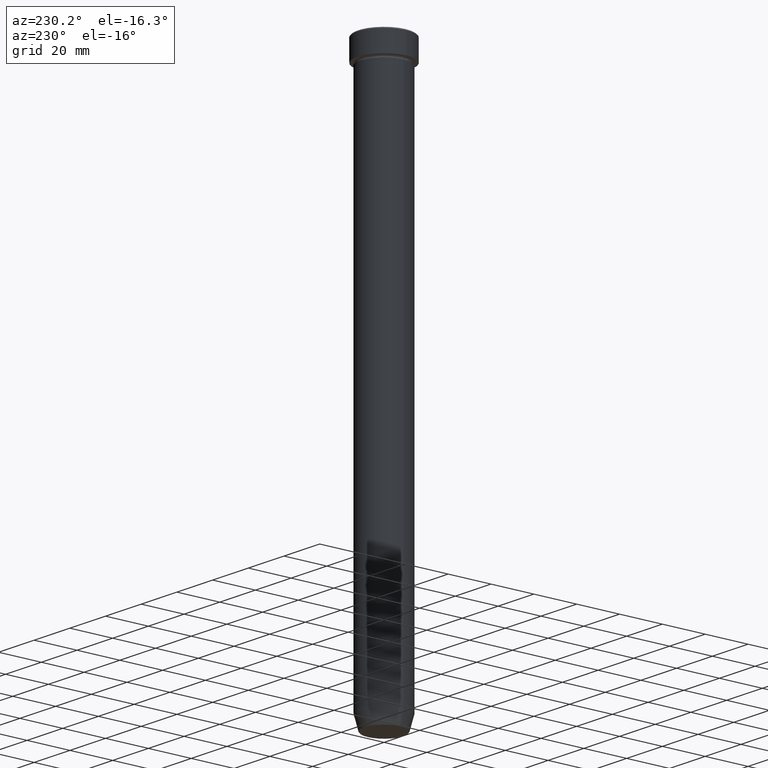
[diagram: clean part render]
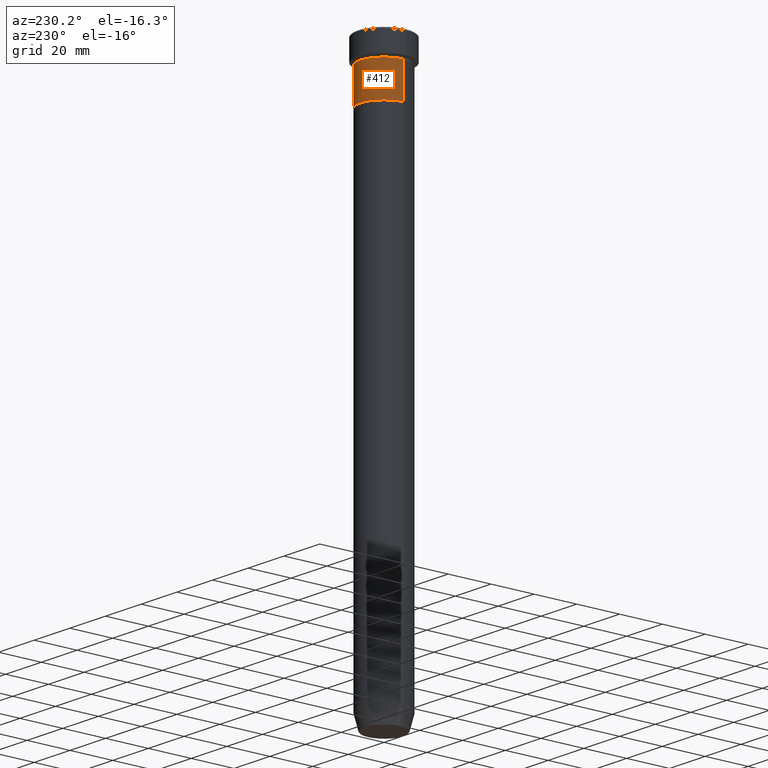
[diagram: same view with one face highlighted and labeled with its STEP entity id]
A machine part, auxiliary view. The second image highlights one B-rep face of the part: STEP entity #412.
In plain terms, the highlighted cylindrical surface (edge-blend (fillet) strip) has radius 11 mm, axis along (-0, -0, 1).
Its self-contained STEP definition (entity closure, byte-faithful):
#21 = CARTESIAN_POINT ( 'NONE',  ( 0.000000000000000000, 0.000000000000000000, 0.000000000000000000 ) ) ;
#22 = VERTEX_POINT ( 'NONE', #111 ) ;
#32 = LINE ( 'NONE', #86, #450 ) ;
#62 = DIRECTION ( 'NONE',  ( -0.000000000000000000, -0.000000000000000000, 1.000000000000000000 ) ) ;
#72 = DIRECTION ( 'NONE',  ( 1.000000000000000000, 0.000000000000000000, 0.000000000000000000 ) ) ;
#83 = CARTESIAN_POINT ( 'NONE',  ( -11.00000000000000000, 1.347111479062088405E-15, -11.00000000000000000 ) ) ;
#86 = CARTESIAN_POINT ( 'NONE',  ( -11.00000000000000000, 1.347111479062088405E-15, 0.000000000000000000 ) ) ;
#111 = CARTESIAN_POINT ( 'NONE',  ( 11.00000000000000000, 0.000000000000000000, -27.00000000000000000 ) ) ;
#154 = VERTEX_POINT ( 'NONE', #389 ) ;
#157 = CIRCLE ( 'NONE', #395, 11.00000000000000000 ) ;
#160 = EDGE_CURVE ( 'NONE', #22, #382, #216, .T. ) ;
#195 = EDGE_CURVE ( 'NONE', #382, #275, #32, .T. ) ;
#203 = DIRECTION ( 'NONE',  ( 1.000000000000000000, 0.000000000000000000, 0.000000000000000000 ) ) ;
#216 = CIRCLE ( 'NONE', #558, 11.00000000000000000 ) ;
#217 = DIRECTION ( 'NONE',  ( -0.000000000000000000, -0.000000000000000000, 1.000000000000000000 ) ) ;
#222 = EDGE_CURVE ( 'NONE', #22, #154, #442, .T. ) ;
#265 = DIRECTION ( 'NONE',  ( -0.000000000000000000, -0.000000000000000000, 1.000000000000000000 ) ) ;
#275 = VERTEX_POINT ( 'NONE', #83 ) ;
#297 = FACE_OUTER_BOUND ( 'NONE', #448, .T. ) ;
#382 = VERTEX_POINT ( 'NONE', #496 ) ;
#389 = CARTESIAN_POINT ( 'NONE',  ( 11.00000000000000000, 0.000000000000000000, -11.00000000000000000 ) ) ;
#395 = AXIS2_PLACEMENT_3D ( 'NONE', #580, #482, #72 ) ;
#412 = ADVANCED_FACE ( 'NONE', ( #297 ), #514, .T. ) ;
#419 = VECTOR ( 'NONE', #265, 1000.000000000000000 ) ;
#426 = EDGE_CURVE ( 'NONE', #154, #275, #157, .T. ) ;
#442 = LINE ( 'NONE', #589, #419 ) ;
#448 = EDGE_LOOP ( 'NONE', ( #582, #452, #484, #466 ) ) ;
#450 = VECTOR ( 'NONE', #217, 1000.000000000000000 ) ;
#452 = ORIENTED_EDGE ( 'NONE', *, *, #195, .T. ) ;
#466 = ORIENTED_EDGE ( 'NONE', *, *, #222, .F. ) ;
#474 = CARTESIAN_POINT ( 'NONE',  ( 0.000000000000000000, 0.000000000000000000, -27.00000000000000000 ) ) ;
#482 = DIRECTION ( 'NONE',  ( -0.000000000000000000, -0.000000000000000000, 1.000000000000000000 ) ) ;
#484 = ORIENTED_EDGE ( 'NONE', *, *, #426, .F. ) ;
#491 = AXIS2_PLACEMENT_3D ( 'NONE', #21, #568, #203 ) ;
#496 = CARTESIAN_POINT ( 'NONE',  ( -11.00000000000000000, 1.347111479062088405E-15, -27.00000000000000000 ) ) ;
#514 = CYLINDRICAL_SURFACE ( 'NONE', #491, 11.00000000000000000 ) ;
#558 = AXIS2_PLACEMENT_3D ( 'NONE', #474, #62, #574 ) ;
#568 = DIRECTION ( 'NONE',  ( -0.000000000000000000, -0.000000000000000000, 1.000000000000000000 ) ) ;
#574 = DIRECTION ( 'NONE',  ( 1.000000000000000000, 0.000000000000000000, 0.000000000000000000 ) ) ;
#580 = CARTESIAN_POINT ( 'NONE',  ( 0.000000000000000000, 0.000000000000000000, -11.00000000000000000 ) ) ;
#582 = ORIENTED_EDGE ( 'NONE', *, *, #160, .T. ) ;
#589 = CARTESIAN_POINT ( 'NONE',  ( 11.00000000000000000, 0.000000000000000000, 0.000000000000000000 ) ) ;